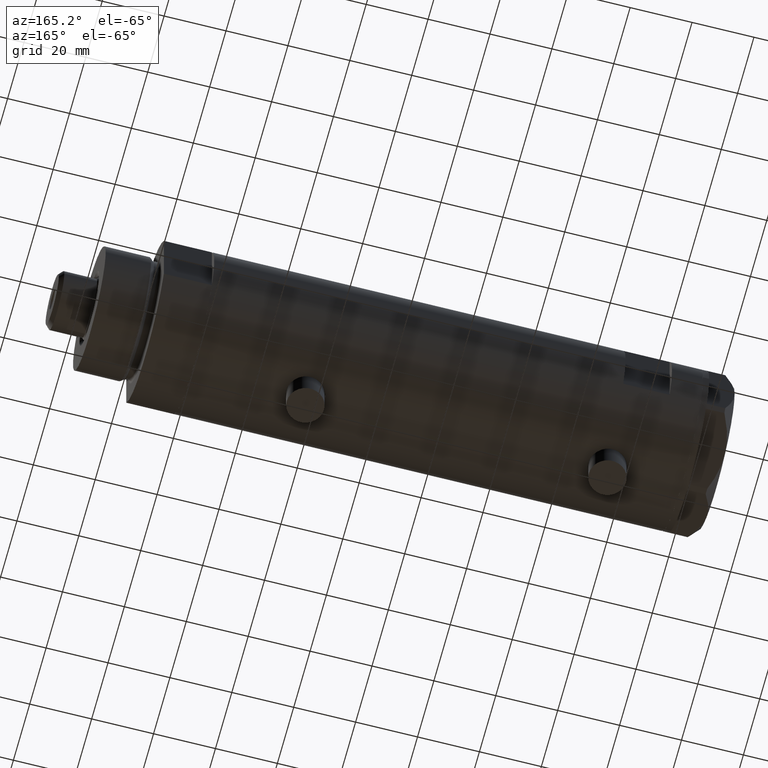
[diagram: clean part render]
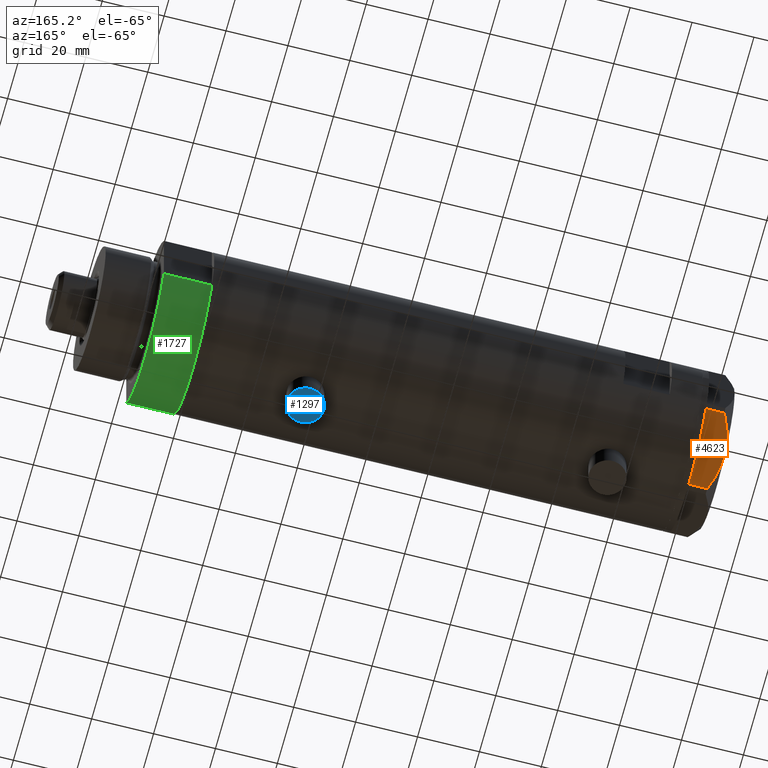
[diagram: same view with three faces highlighted in distinct colors, each labeled with its STEP entity id]
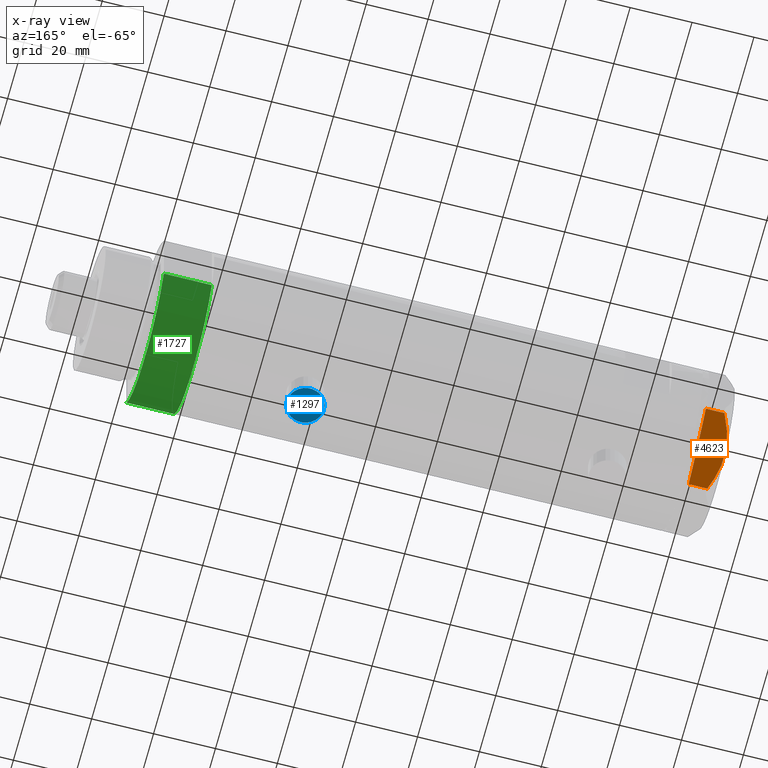
[diagram: x-ray of the same camera — body ghosted, the three highlighted faces saturated]
A machine part, auxiliary view with three faces highlighted in distinct colors.
The next image is the same camera in x-ray (body ghosted, the three faces saturated) — at least one of them is partly hidden behind the body in this view.
Their STEP definitions:

[orange] entity #4623 — the highlighted planar face has unit normal (0, -0.5, 0.866).
#2 = CARTESIAN_POINT ( 'NONE',  ( 22.03005154776138852, 13.83905619136154819, 5.983800287807532037 ) ) ;
#25 = EDGE_CURVE ( 'NONE', #4360, #1155, #371, .T. ) ;
#78 = CARTESIAN_POINT ( 'NONE',  ( 7.884645426989626671, 22.00591022298560517, 8.707651728476925257 ) ) ;
#127 = CARTESIAN_POINT ( 'NONE',  ( 4.357207709416038632, 24.04247733877631532, 7.570552255229681116 ) ) ;
#184 = CARTESIAN_POINT ( 'NONE',  ( 5.229981517798067081, 23.53858114556529912, 7.892128867758392730 ) ) ;
#276 = PLANE ( 'NONE',  #1640 ) ;
#353 = VERTEX_POINT ( 'NONE', #2320 ) ;
#359 = EDGE_CURVE ( 'NONE', #799, #2924, #2347, .T. ) ;
#371 = B_SPLINE_CURVE_WITH_KNOTS ( 'NONE', 3,
 ( #2, #3133, #1507, #4624, #2258, #1267, #2408, #2040, #2801, #4283 ),
 .UNSPECIFIED., .F., .F.,
 ( 4, 2, 2, 2, 4 ),
 ( 0.001228959670438493522, 0.007497079744270714746, 0.01063113978118682655, 0.01219816979964488159, 0.01376519981810293489 ),
 .UNSPECIFIED. ) ;
#375 = ORIENTED_EDGE ( 'NONE', *, *, #2874, .T. ) ;
#504 = CARTESIAN_POINT ( 'NONE',  ( 0.9699484522385816154, 25.99811238272274494, 0.000000000000000000 ) ) ;
#509 = DIRECTION ( 'NONE',  ( 0.000000000000000000, 0.000000000000000000, -1.000000000000000000 ) ) ;
#516 = LINE ( 'NONE', #3885, #2053 ) ;
#604 = CARTESIAN_POINT ( 'NONE',  ( 0.9699484522385767304, 25.99811238272274849, 5.983800287807627960 ) ) ;
#714 = ORIENTED_EDGE ( 'NONE', *, *, #2781, .T. ) ;
#757 = CARTESIAN_POINT ( 'NONE',  ( 22.03005154776138852, 13.83905619136154819, 5.983800287807532037 ) ) ;
#799 = VERTEX_POINT ( 'NONE', #3870 ) ;
#808 = DIRECTION ( 'NONE',  ( -0.8660254037844415942, 0.4999999999999949485, 0.000000000000000000 ) ) ;
#1047 = DIRECTION ( 'NONE',  ( -0.4999999999999949485, -0.8660254037844415942, 0.000000000000000000 ) ) ;
#1064 = CARTESIAN_POINT ( 'NONE',  ( 0.9699484522385767304, 25.99811238272274849, 5.983800287807627960 ) ) ;
#1155 = VERTEX_POINT ( 'NONE', #1590 ) ;
#1172 = LINE ( 'NONE', #2681, #2059 ) ;
#1211 = EDGE_LOOP ( 'NONE', ( #3351, #4749, #2621, #714, #1235, #375, #1468 ) ) ;
#1235 = ORIENTED_EDGE ( 'NONE', *, *, #3556, .T. ) ;
#1267 = CARTESIAN_POINT ( 'NONE',  ( 13.80210138309697498, 18.58946543380931260, 8.852712638955710034 ) ) ;
#1299 = CARTESIAN_POINT ( 'NONE',  ( 5.671686373602799591, 23.28356272816407824, 8.040681765829278405 ) ) ;
#1322 = CARTESIAN_POINT ( 'NONE',  ( 2.640413878806739945, 25.03366871902167290, 6.844201024438365089 ) ) ;
#1468 = ORIENTED_EDGE ( 'NONE', *, *, #3590, .F. ) ;
#1507 = CARTESIAN_POINT ( 'NONE',  ( 18.67981377008996446, 15.77331687414937278, 7.629374868826049649 ) ) ;
#1590 = CARTESIAN_POINT ( 'NONE',  ( 11.49999999999990408, 19.91858428704219364, 9.000000000000000000 ) ) ;
#1640 = AXIS2_PLACEMENT_3D ( 'NONE', #4406, #1047, #2551 ) ;
#1682 = CARTESIAN_POINT ( 'NONE',  ( 3.925137811030050994, 24.29193301091819635, 7.397272853991373687 ) ) ;
#2021 = CARTESIAN_POINT ( 'NONE',  ( 11.49999999999990408, 19.91858428704219364, 9.000000000000000000 ) ) ;
#2030 = DIRECTION ( 'NONE',  ( -0.8660254037844415942, 0.4999999999999949485, 0.000000000000000000 ) ) ;
#2040 = CARTESIAN_POINT ( 'NONE',  ( 12.41906678023027588, 19.38796083407295967, 8.981686407609410949 ) ) ;
#2053 = VECTOR ( 'NONE', #2057, 999.9999999999998863 ) ;
#2057 = DIRECTION ( 'NONE',  ( -0.8660254037844415942, 0.4999999999999949485, 0.000000000000000000 ) ) ;
#2059 = VECTOR ( 'NONE', #808, 999.9999999999998863 ) ;
#2168 = FACE_OUTER_BOUND ( 'NONE', #1211, .T. ) ;
#2220 = CARTESIAN_POINT ( 'NONE',  ( 21.99999999999987210, 13.85640646055121827, 0.000000000000000000 ) ) ;
#2258 = CARTESIAN_POINT ( 'NONE',  ( 15.16323225988329959, 17.80361615569442790, 8.637313967156861949 ) ) ;
#2320 = CARTESIAN_POINT ( 'NONE',  ( 0.9999999999999297229, 25.98076211353316722, 0.000000000000000000 ) ) ;
#2327 = VERTEX_POINT ( 'NONE', #1064 ) ;
#2347 = LINE ( 'NONE', #3082, #3322 ) ;
#2408 = CARTESIAN_POINT ( 'NONE',  ( 13.34348161667005073, 18.85424967941157703, 8.907842277728345692 ) ) ;
#2490 = LINE ( 'NONE', #3579, #2975 ) ;
#2551 = DIRECTION ( 'NONE',  ( 0.8660254037844415942, -0.4999999999999949485, 0.000000000000000000 ) ) ;
#2621 = ORIENTED_EDGE ( 'NONE', *, *, #359, .T. ) ;
#2681 = CARTESIAN_POINT ( 'NONE',  ( 22.99999999999981171, 13.27905619136164184, 0.000000000000000000 ) ) ;
#2781 = EDGE_CURVE ( 'NONE', #2924, #353, #516, .T. ) ;
#2801 = CARTESIAN_POINT ( 'NONE',  ( 11.95865151389051917, 19.65378171203322566, 9.000000000000005329 ) ) ;
#2874 = EDGE_CURVE ( 'NONE', #4837, #2327, #2490, .T. ) ;
#2924 = VERTEX_POINT ( 'NONE', #2220 ) ;
#2975 = VECTOR ( 'NONE', #3288, 1000.000000000000000 ) ;
#3082 = CARTESIAN_POINT ( 'NONE',  ( 22.99999999999981171, 13.27905619136164184, 0.000000000000000000 ) ) ;
#3133 = CARTESIAN_POINT ( 'NONE',  ( 20.37350567916420019, 14.79546339452108050, 6.877782426143415506 ) ) ;
#3148 = VECTOR ( 'NONE', #509, 1000.000000000000000 ) ;
#3288 = DIRECTION ( 'NONE',  ( 0.000000000000000000, 0.000000000000000000, 1.000000000000000000 ) ) ;
#3322 = VECTOR ( 'NONE', #2030, 999.9999999999998863 ) ;
#3351 = ORIENTED_EDGE ( 'NONE', *, *, #25, .F. ) ;
#3528 = B_SPLINE_CURVE_WITH_KNOTS ( 'NONE', 3,
 ( #2021, #3557, #78, #1299, #184, #127, #1682, #1322, #3945, #604 ),
 .UNSPECIFIED., .F., .F.,
 ( 4, 2, 2, 2, 4 ),
 ( 0.01376519981810293489, 0.01998941321701561136, 0.02154546656674377961, 0.02310151991647194786, 0.02621362661592828783 ),
 .UNSPECIFIED. ) ;
#3556 = EDGE_CURVE ( 'NONE', #353, #4837, #1172, .T. ) ;
#3557 = CARTESIAN_POINT ( 'NONE',  ( 9.678244919010086988, 20.97037507344920826, 9.000000000000001776 ) ) ;
#3579 = CARTESIAN_POINT ( 'NONE',  ( 0.9699484522385816154, 25.99811238272274494, 9.000000000000000000 ) ) ;
#3584 = EDGE_CURVE ( 'NONE', #4360, #799, #3881, .T. ) ;
#3590 = EDGE_CURVE ( 'NONE', #1155, #2327, #3528, .T. ) ;
#3870 = CARTESIAN_POINT ( 'NONE',  ( 22.03005154776124286, 13.83905619136163168, 0.000000000000000000 ) ) ;
#3881 = LINE ( 'NONE', #4660, #3148 ) ;
#3885 = CARTESIAN_POINT ( 'NONE',  ( 22.99999999999981171, 13.27905619136164184, 0.000000000000000000 ) ) ;
#3945 = CARTESIAN_POINT ( 'NONE',  ( 1.799196345396824492, 25.51934588838292228, 6.431317509509382191 ) ) ;
#4283 = CARTESIAN_POINT ( 'NONE',  ( 11.49999999999990408, 19.91858428704219364, 9.000000000000000000 ) ) ;
#4360 = VERTEX_POINT ( 'NONE', #757 ) ;
#4406 = CARTESIAN_POINT ( 'NONE',  ( 22.99999999999981171, 13.27905619136164184, 9.000000000000000000 ) ) ;
#4623 = ADVANCED_FACE ( 'NONE', ( #2168 ), #276, .F. ) ;
#4624 = CARTESIAN_POINT ( 'NONE',  ( 16.05322244309623869, 17.28978008384030929, 8.426899937603700153 ) ) ;
#4660 = CARTESIAN_POINT ( 'NONE',  ( 22.03005154776124286, 13.83905619136163168, 9.000000000000000000 ) ) ;
#4749 = ORIENTED_EDGE ( 'NONE', *, *, #3584, .T. ) ;
#4837 = VERTEX_POINT ( 'NONE', #504 ) ;

[blue] entity #1297 — the highlighted planar face has unit normal (-0, 0, -1).
#52 = CIRCLE ( 'NONE', #2353, 6.000000000000005329 ) ;
#615 = DIRECTION ( 'NONE',  ( -1.000000000000000000, 0.000000000000000000, 0.000000000000000000 ) ) ;
#1004 = FACE_OUTER_BOUND ( 'NONE', #3639, .T. ) ;
#1149 = DIRECTION ( 'NONE',  ( 0.000000000000000000, 0.000000000000000000, 1.000000000000000000 ) ) ;
#1297 = ADVANCED_FACE ( 'NONE', ( #1004 ), #3545, .T. ) ;
#1621 = AXIS2_PLACEMENT_3D ( 'NONE', #4004, #615, #2456 ) ;
#1996 = EDGE_CURVE ( 'NONE', #2685, #2011, #52, .T. ) ;
#2011 = VERTEX_POINT ( 'NONE', #3804 ) ;
#2074 = DIRECTION ( 'NONE',  ( 0.000000000000000000, 0.000000000000000000, 1.000000000000000000 ) ) ;
#2332 = CARTESIAN_POINT ( 'NONE',  ( -33.39999999999999858, 0.000000000000000000, -42.65000000000000568 ) ) ;
#2353 = AXIS2_PLACEMENT_3D ( 'NONE', #4509, #4536, #1149 ) ;
#2456 = DIRECTION ( 'NONE',  ( 0.000000000000000000, 0.000000000000000000, 1.000000000000000000 ) ) ;
#2685 = VERTEX_POINT ( 'NONE', #3408 ) ;
#2727 = DIRECTION ( 'NONE',  ( -1.000000000000000000, 0.000000000000000000, 0.000000000000000000 ) ) ;
#2973 = CIRCLE ( 'NONE', #4239, 6.000000000000005329 ) ;
#3173 = ORIENTED_EDGE ( 'NONE', *, *, #3994, .T. ) ;
#3408 = CARTESIAN_POINT ( 'NONE',  ( -33.39999999999999858, 0.000000000000000000, -48.65000000000001279 ) ) ;
#3451 = ORIENTED_EDGE ( 'NONE', *, *, #1996, .T. ) ;
#3545 = PLANE ( 'NONE',  #1621 ) ;
#3639 = EDGE_LOOP ( 'NONE', ( #3451, #3173 ) ) ;
#3804 = CARTESIAN_POINT ( 'NONE',  ( -33.39999999999999858, 7.347880794884118750E-16, -36.64999999999999858 ) ) ;
#3994 = EDGE_CURVE ( 'NONE', #2011, #2685, #2973, .T. ) ;
#4004 = CARTESIAN_POINT ( 'NONE',  ( -33.39999999999999858, 0.000000000000000000, -42.65000000000000568 ) ) ;
#4239 = AXIS2_PLACEMENT_3D ( 'NONE', #2332, #2727, #2074 ) ;
#4509 = CARTESIAN_POINT ( 'NONE',  ( -33.39999999999999858, 0.000000000000000000, -42.65000000000000568 ) ) ;
#4536 = DIRECTION ( 'NONE',  ( -1.000000000000000000, 0.000000000000000000, 0.000000000000000000 ) ) ;

[green] entity #1727 — the highlighted cylindrical surface (partial cylindrical patch) has radius 26 mm, axis along (-1, -0, 0).
#161 = CARTESIAN_POINT ( 'NONE',  ( 12.12435565298214790, 23.00000000000000355, 15.50000000000000000 ) ) ;
#243 = DIRECTION ( 'NONE',  ( -0.000000000000000000, -0.000000000000000000, -1.000000000000000000 ) ) ;
#562 = ORIENTED_EDGE ( 'NONE', *, *, #2330, .T. ) ;
#686 = AXIS2_PLACEMENT_3D ( 'NONE', #4020, #2242, #1395 ) ;
#774 = AXIS2_PLACEMENT_3D ( 'NONE', #2156, #243, #4398 ) ;
#1078 = VERTEX_POINT ( 'NONE', #3807 ) ;
#1091 = DIRECTION ( 'NONE',  ( 1.000000000000000000, 0.000000000000000000, 0.000000000000000000 ) ) ;
#1234 = VERTEX_POINT ( 'NONE', #2154 ) ;
#1345 = EDGE_CURVE ( 'NONE', #1234, #2170, #1862, .T. ) ;
#1395 = DIRECTION ( 'NONE',  ( 1.000000000000000000, 0.000000000000000000, 0.000000000000000000 ) ) ;
#1423 = CYLINDRICAL_SURFACE ( 'NONE', #774, 26.00000000000000355 ) ;
#1578 = EDGE_LOOP ( 'NONE', ( #3770, #2994, #3380, #562 ) ) ;
#1727 = ADVANCED_FACE ( 'NONE', ( #4024 ), #1423, .T. ) ;
#1832 = DIRECTION ( 'NONE',  ( -0.000000000000000000, -0.000000000000000000, 1.000000000000000000 ) ) ;
#1862 = CIRCLE ( 'NONE', #686, 26.00000000000000355 ) ;
#2154 = CARTESIAN_POINT ( 'NONE',  ( 12.12435565298215323, -22.99999999999999645, 15.50000000000000000 ) ) ;
#2156 = CARTESIAN_POINT ( 'NONE',  ( 0.000000000000000000, 0.000000000000000000, 15.50000000000000000 ) ) ;
#2170 = VERTEX_POINT ( 'NONE', #161 ) ;
#2242 = DIRECTION ( 'NONE',  ( 0.000000000000000000, 0.000000000000000000, 1.000000000000000000 ) ) ;
#2330 = EDGE_CURVE ( 'NONE', #4543, #2170, #4444, .T. ) ;
#2819 = DIRECTION ( 'NONE',  ( -0.000000000000000000, -0.000000000000000000, 1.000000000000000000 ) ) ;
#2836 = AXIS2_PLACEMENT_3D ( 'NONE', #3856, #4603, #1091 ) ;
#2953 = EDGE_CURVE ( 'NONE', #1078, #1234, #3353, .T. ) ;
#2994 = ORIENTED_EDGE ( 'NONE', *, *, #2953, .F. ) ;
#3019 = EDGE_CURVE ( 'NONE', #1078, #4543, #4703, .T. ) ;
#3353 = LINE ( 'NONE', #4504, #3527 ) ;
#3380 = ORIENTED_EDGE ( 'NONE', *, *, #3019, .T. ) ;
#3527 = VECTOR ( 'NONE', #1832, 1000.000000000000000 ) ;
#3770 = ORIENTED_EDGE ( 'NONE', *, *, #1345, .F. ) ;
#3807 = CARTESIAN_POINT ( 'NONE',  ( 12.12435565298215323, -22.99999999999999645, 0.000000000000000000 ) ) ;
#3856 = CARTESIAN_POINT ( 'NONE',  ( 0.000000000000000000, 0.000000000000000000, 0.000000000000000000 ) ) ;
#4020 = CARTESIAN_POINT ( 'NONE',  ( 0.000000000000000000, 0.000000000000000000, 15.50000000000000000 ) ) ;
#4024 = FACE_OUTER_BOUND ( 'NONE', #1578, .T. ) ;
#4227 = CARTESIAN_POINT ( 'NONE',  ( 12.12435565298215323, 23.00000000000000355, 0.000000000000000000 ) ) ;
#4398 = DIRECTION ( 'NONE',  ( -1.000000000000000000, 0.000000000000000000, 0.000000000000000000 ) ) ;
#4444 = LINE ( 'NONE', #4227, #4450 ) ;
#4450 = VECTOR ( 'NONE', #2819, 1000.000000000000000 ) ;
#4504 = CARTESIAN_POINT ( 'NONE',  ( 12.12435565298215323, -22.99999999999999645, 0.000000000000000000 ) ) ;
#4543 = VERTEX_POINT ( 'NONE', #4639 ) ;
#4603 = DIRECTION ( 'NONE',  ( 0.000000000000000000, 0.000000000000000000, 1.000000000000000000 ) ) ;
#4639 = CARTESIAN_POINT ( 'NONE',  ( 12.12435565298214080, 23.00000000000000355, 0.000000000000000000 ) ) ;
#4703 = CIRCLE ( 'NONE', #2836, 26.00000000000000355 ) ;